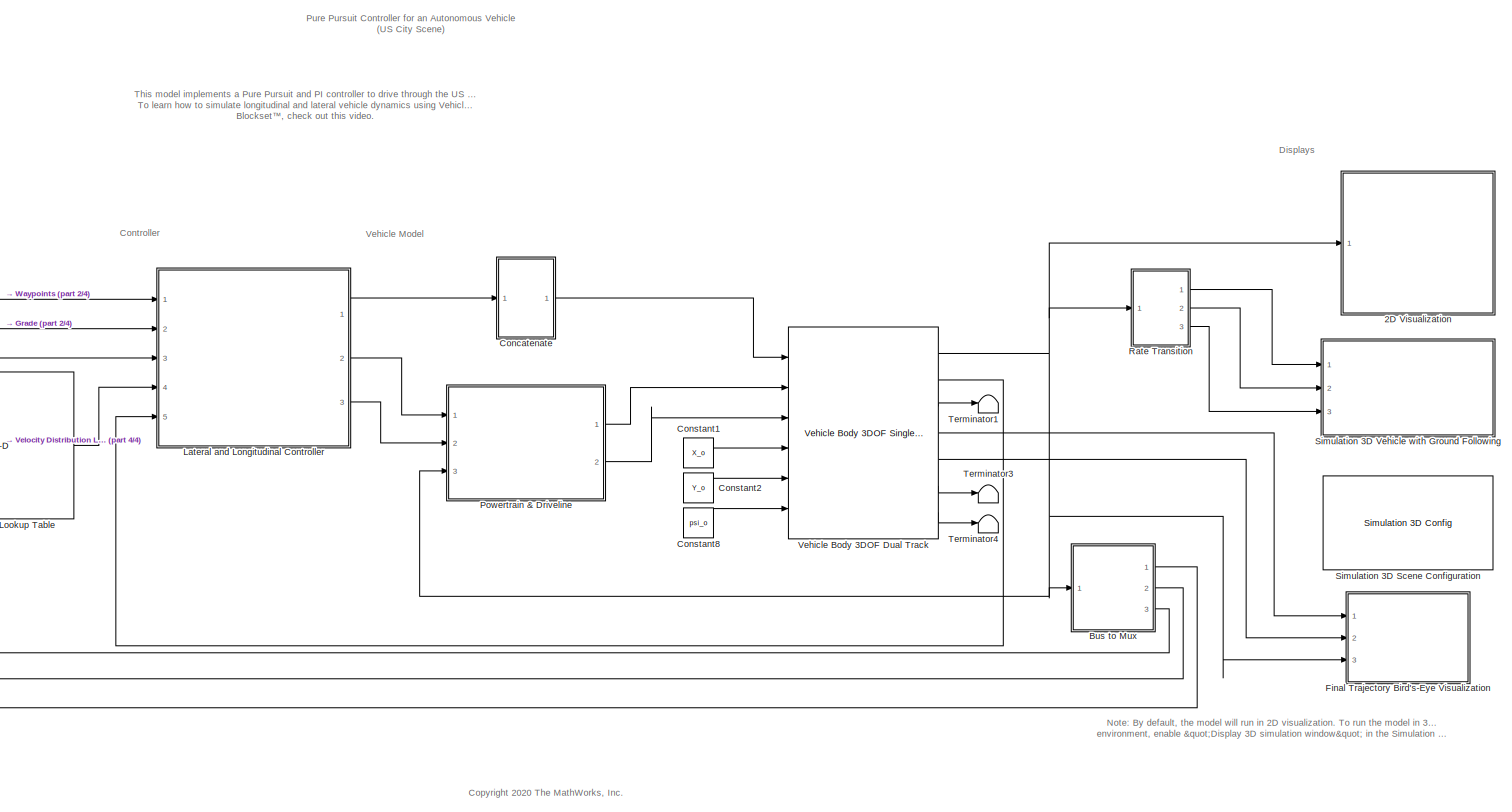
[diagram: root canvas - part 1/4, center side, full height]
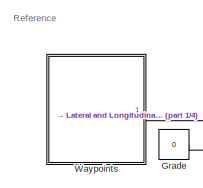
[diagram: root canvas - part 2/4, middle left region]
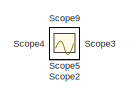
[diagram: root canvas - part 3/4, top right region]
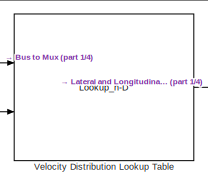
[diagram: root canvas - part 4/4, middle left region]
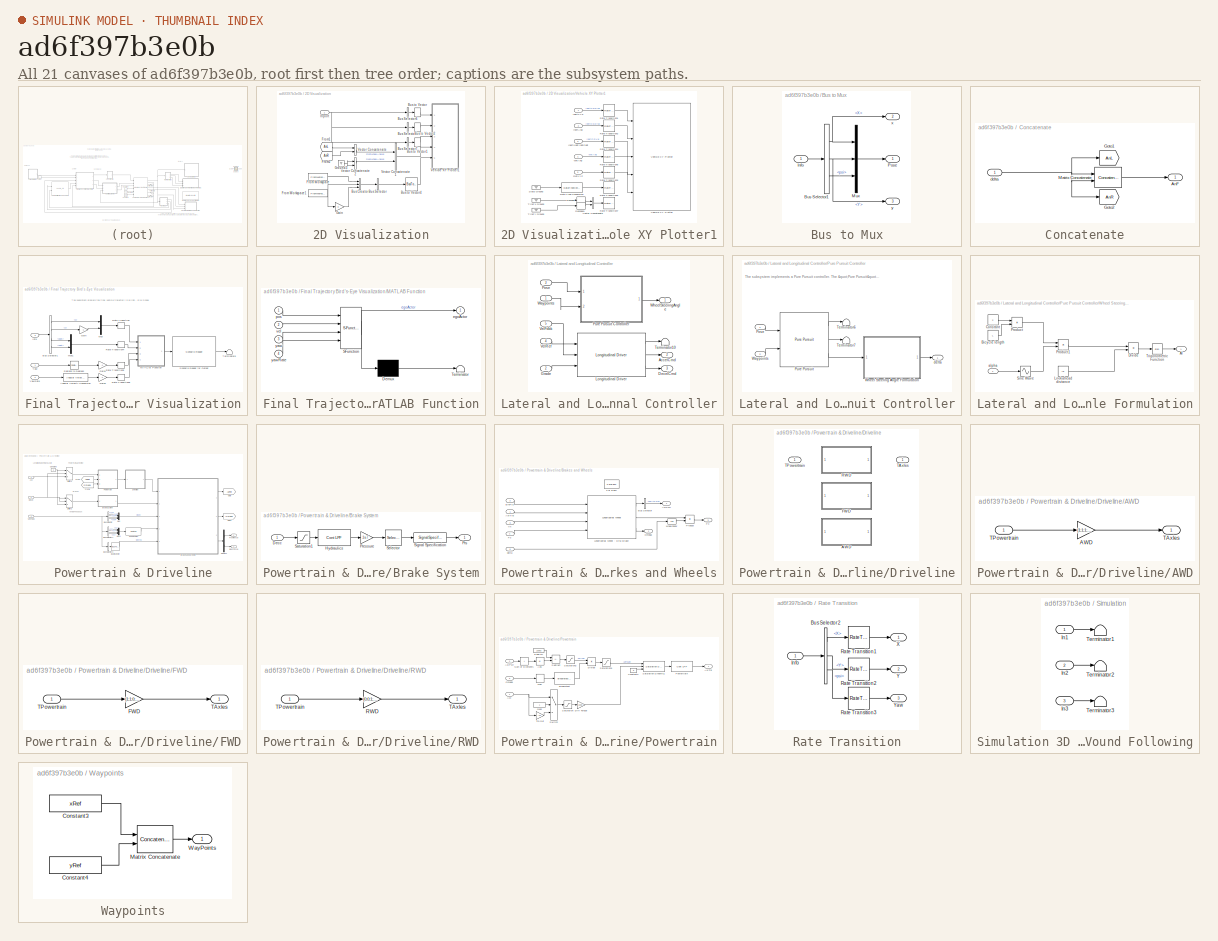
[diagram: thumbnail index - all 21 canvases of the model, root first then tree order]
MODEL slx_ad6f397b3e0b
KIND model
CONFIG AbsTol = auto
CONFIG EnableMultiTasking = off
CONFIG FixedStep = auto
CONFIG MaxStep = auto
CONFIG MinStep = auto
CONFIG PreLoadFcn = setUpPurePursuitUSCity
CONFIG RelTol = 1e-3
CONFIG SampleTimeConstraint = Unconstrained
CONFIG Solver = VariableStepAuto
CONFIG SolverName = VariableStepAuto
CONFIG StartTime = 0.0
CONFIG StopTime = Ts
WORKSPACE source: MAT-file member
WORKSPACE firstWarning = 0
BLOCK [SubSystem] 2D Visualization
  Ports = [1]
  RequestExecContextInheritance = off
BLOCK [BusCreator] 2D Visualization/Bus Creator
  DisplayOption = bar
  InheritFromInputs = on
  Inputs = 3
  Ports = [3, 1]
BLOCK [BusSelector] 2D Visualization/Bus Selector
  OutputAsBus = on
  OutputSignals = signal1,signal2,signal3
  Ports = [1, 1]
BLOCK [BusSelector] 2D Visualization/Bus Selector1
  OutputAsBus = on
  OutputSignals = InertFrm.Cg.Ang.phi,InertFrm.Cg.Ang.theta,InertFrm.Cg.Ang.psi
  Ports = [1, 1]
BLOCK [BusSelector] 2D Visualization/Bus Selector6
  OutputAsBus = on
  OutputSignals = InertFrm.Geom.Disp.X,InertFrm.Geom.Disp.Y,InertFrm.Geom.Disp.Z
  Ports = [1, 1]
BLOCK [BusSelector] 2D Visualization/Bus Selector7
  OutputAsBus = on
  OutputSignals = InertFrm.Geom.Vel.Xdot,InertFrm.Geom.Vel.Ydot,InertFrm.Geom.Vel.Zdot
  Ports = [1, 1]
BLOCK [BusToVector] 2D Visualization/Bus to Vector
BLOCK [BusToVector] 2D Visualization/Bus to Vector1
BLOCK [BusToVector] 2D Visualization/Bus to Vector2
BLOCK [BusToVector] 2D Visualization/Bus to Vector4
BLOCK [FromWorkspace] 2D Visualization/From Workspace
  VariableName = [tRef xRef]
BLOCK [FromWorkspace] 2D Visualization/From Workspace1
  VariableName = [tRef yRef]
BLOCK [From] 2D Visualization/From1
  GotoTag = AnL
  TagVisibility = global
BLOCK [From] 2D Visualization/From2
  GotoTag = AnR
  TagVisibility = global
BLOCK [Gain] 2D Visualization/Gain
  Gain = 0
BLOCK [Ground] 2D Visualization/Ground3
BLOCK [Inport] 2D Visualization/Inport
BLOCK [Concatenate] 2D Visualization/Vector Concatenate
  Ports = [2, 1]
BLOCK [Concatenate] 2D Visualization/Vector Concatenate1
  Ports = [2, 1]
BLOCK [Concatenate] 2D Visualization/Vector Concatenate2
  Ports = [2, 1]
BLOCK [SubSystem] 2D Visualization/Vehicle XY Plotter1
  Ports = [5]
  RequestExecContextInheritance = off
BLOCK [DataTypeConversion] 2D Visualization/Vehicle XY Plotter1/Data Type Conversion
  OutDataTypeStr = double
  RndMeth = Floor
  SaturateOnIntegerOverflow = off
BLOCK [Inport] 2D Visualization/Vehicle XY Plotter1/InertAng
  Port = 2
BLOCK [Inport] 2D Visualization/Vehicle XY Plotter1/InertXYZ
BLOCK [Inport] 2D Visualization/Vehicle XY Plotter1/InertXdotYdotZdot
  Port = 3
BLOCK [RateTransition] 2D Visualization/Vehicle XY Plotter1/Rate Transition1
  Deterministic = off
  OutPortSampleTime = pltDT
BLOCK [RateTransition] 2D Visualization/Vehicle XY Plotter1/Rate Transition2
  Deterministic = off
  OutPortSampleTime = pltDT
BLOCK [RateTransition] 2D Visualization/Vehicle XY Plotter1/Rate Transition3
  Deterministic = off
  OutPortSampleTime = pltDT
BLOCK [RateTransition] 2D Visualization/Vehicle XY Plotter1/Rate Transition4
  Deterministic = off
  OutPortSampleTime = pltDT
BLOCK [RateTransition] 2D Visualization/Vehicle XY Plotter1/Rate Transition5
  Deterministic = off
  OutPortSampleTime = pltDT
BLOCK [RateTransition] 2D Visualization/Vehicle XY Plotter1/Rate Transition6
  Deterministic = off
  OutPortSampleTime = pltDT
BLOCK [RateTransition] 2D Visualization/Vehicle XY Plotter1/Rate Transition7
  Deterministic = off
  OutPortSampleTime = pltDT
BLOCK [Inport] 2D Visualization/Vehicle XY Plotter1/RefXYZ
  Port = 5
BLOCK [Reshape] 2D Visualization/Vehicle XY Plotter1/Reshape
  OutputDimensionality = Row vector (2-D)
  Ports = [1, 1]
BLOCK [Reshape] 2D Visualization/Vehicle XY Plotter1/Reshape1
  OutputDimensionality = Row vector (2-D)
  Ports = [1, 1]
BLOCK [Ground] 2D Visualization/Vehicle XY Plotter1/Stats Ground
BLOCK [Ground] 2D Visualization/Vehicle XY Plotter1/TireFx Ground
BLOCK [Ground] 2D Visualization/Vehicle XY Plotter1/TireFy Ground
BLOCK [Concatenate] 2D Visualization/Vehicle XY Plotter1/Vector Concatenate
  Mode = Multidimensional array
  Ports = [2, 1]
BLOCK [Reference] 2D Visualization/Vehicle XY Plotter1/Vehicle XY Plotter  REF=vehdynlibviscommon/Vehicle XY Plotter
  Ports = [5]
  SourceBlock = vehdynlibviscommon/Vehicle XY Plotter
  SourceProductBaseCode = VE
  SourceType = Vehicle XY Plotter
BLOCK [Inport] 2D Visualization/Vehicle XY Plotter1/WhlAng
  Port = 4
BLOCK [SubSystem] Bus to Mux
  Ports = [1, 3]
  RequestExecContextInheritance = off
BLOCK [BusSelector] Bus to Mux/Bus Selector1
  OutputSignals = InertFrm.Cg.Disp.X,InertFrm.Cg.Disp.Y,InertFrm.Cg.Ang.psi
  Ports = [1, 3]
BLOCK [Inport] Bus to Mux/Info
BLOCK [Mux] Bus to Mux/Mux
  DisplayOption = bar
  Inputs = 3
  Ports = [3, 1]
BLOCK [Outport] Bus to Mux/Pose
BLOCK [Outport] Bus to Mux/x
  Port = 2
BLOCK [Outport] Bus to Mux/y
  Port = 3
BLOCK [SubSystem] Concatenate
  Ports = [1, 1]
  RequestExecContextInheritance = off
BLOCK [Outport] Concatenate/AnF
  VectorParamsAs1DForOutWhenUnconnected = off
BLOCK [Goto] Concatenate/Goto1
  GotoTag = AnL
  TagVisibility = global
BLOCK [Goto] Concatenate/Goto2
  GotoTag = AnR
  TagVisibility = global
BLOCK [Concatenate] Concatenate/Matrix Concatenate
  Ports = [2, 1]
BLOCK [Inport] Concatenate/delta
BLOCK [Constant] Constant1
  Value = X_o
BLOCK [Constant] Constant2
  Value = Y_o
BLOCK [Constant] Constant8
  Value = psi_o
BLOCK [SubSystem] Final Trajectory Bird's-Eye Visualization
  Ports = [3]
  RequestExecContextInheritance = off
BLOCK [Reference] Final Trajectory Bird's-Eye Visualization/Angular Velocity Conversion  REF=aerolibconvert2/Angular Velocity
Conversion
  Ports = [1, 1]
  SourceBlock = aerolibconvert2/Angular Velocity\nConversion
  SourceProductBaseCode = AE
  SourceType = Angular Velocity Conversion
BLOCK [BusSelector] Final Trajectory Bird's-Eye Visualization/Bus Selector1
  OutputSignals = InertFrm.Cg.Disp.X,InertFrm.Cg.Disp.Y,InertFrm.Cg.Vel.Xdot,InertFrm.Cg.Vel.Ydot
  Ports = [1, 4]
BLOCK [Gain] Final Trajectory Bird's-Eye Visualization/Gain
  Gain = -1
BLOCK [Gain] Final Trajectory Bird's-Eye Visualization/Gain1
  Gain = -1
BLOCK [Gain] Final Trajectory Bird's-Eye Visualization/Gain2
  Gain = -1
BLOCK [Inport] Final Trajectory Bird's-Eye Visualization/Info
  Port = 3
BLOCK [SubSystem] Final Trajectory Bird's-Eye Visualization/MATLAB Function
  ErrorFcn = Stateflow.Translate.translate
  PermitHierarchicalResolution = ExplicitOnly
  Ports = [4, 1]
  RequestExecContextInheritance = off
  SFBlockType = MATLAB Function
  TreatAsAtomicUnit = on
BLOCK [Demux] Final Trajectory Bird's-Eye Visualization/MATLAB Function/ Demux 
  Outputs = 1
  Ports = [1, 1]
BLOCK [S-Function] Final Trajectory Bird's-Eye Visualization/MATLAB Function/ SFunction 
  EnableBusSupport = on
  FunctionName = sf_sfun
  PortCounts = [4 2]
  Ports = [4, 2]
  SFcnIsStateOwnerBlock = off
  SFunctionDeploymentMode = off
  Tag = Stateflow S-Function purePursuitUSCity_2019a 2
BLOCK [Terminator] Final Trajectory Bird's-Eye Visualization/MATLAB Function/ Terminator 
BLOCK [Outport] Final Trajectory Bird's-Eye Visualization/MATLAB Function/egoActor
BLOCK [Inport] Final Trajectory Bird's-Eye Visualization/MATLAB Function/pos
BLOCK [Inport] Final Trajectory Bird's-Eye Visualization/MATLAB Function/vel
  Port = 2
BLOCK [Inport] Final Trajectory Bird's-Eye Visualization/MATLAB Function/yaw
  Port = 3
BLOCK [Inport] Final Trajectory Bird's-Eye Visualization/MATLAB Function/yawRate
  Port = 4
BLOCK [Mux] Final Trajectory Bird's-Eye Visualization/Mux
  DisplayOption = bar
  Inputs = 2
  Ports = [2, 1]
BLOCK [Mux] Final Trajectory Bird's-Eye Visualization/Mux1
  DisplayOption = bar
  Inputs = 2
  Ports = [2, 1]
BLOCK [Reference] Final Trajectory Bird's-Eye Visualization/Radians to Degrees  REF=simulink_extras/Transformations/Radians
to Degrees
  Ports = [1, 1]
  SourceBlock = simulink_extras/Transformations/Radians\nto Degrees
  SourceProductBaseCode = SL
  SourceType = RadiansToDegrees
BLOCK [RateTransition] Final Trajectory Bird's-Eye Visualization/Rate Transition
BLOCK [RateTransition] Final Trajectory Bird's-Eye Visualization/Rate Transition4
BLOCK [RateTransition] Final Trajectory Bird's-Eye Visualization/Rate Transition5
BLOCK [RateTransition] Final Trajectory Bird's-Eye Visualization/Rate Transition6
BLOCK [Reference] Final Trajectory Bird's-Eye Visualization/Scenario Reader for Output   REF=drivingscenarioandsensors/Scenario Reader
  Ports = [1, 1]
  SourceBlock = drivingscenarioandsensors/Scenario Reader
  SourceProductBaseCode = DR
  SourceType = driving.scenario.internal.ScenarioReader
BLOCK [Terminator] Final Trajectory Bird's-Eye Visualization/Terminator6
BLOCK [Inport] Final Trajectory Bird's-Eye Visualization/Yaw
BLOCK [Inport] Final Trajectory Bird's-Eye Visualization/YawRate
  Port = 2
BLOCK [Constant] Grade
  Value = 0
BLOCK [SubSystem] Lateral and Longitudinal Controller
  Ports = [5, 3]
  RequestExecContextInheritance = off
BLOCK [Outport] Lateral and Longitudinal Controller/AccelCmd
  Port = 2
BLOCK [Outport] Lateral and Longitudinal Controller/DecelCmd
  Port = 3
BLOCK [Inport] Lateral and Longitudinal Controller/Grade
  Port = 2
BLOCK [Reference] Lateral and Longitudinal Controller/Longitudinal Driver  REF=autolibshared/Longitudinal Driver
  Ports = [3, 3]
  SourceBlock = autolibshared/Longitudinal Driver
  SourceProductBaseCode = PW,MT,UV,VE,VP
  SourceType = Longitudinal Driver
BLOCK [Inport] Lateral and Longitudinal Controller/Pose
  Port = 3
BLOCK [SubSystem] Lateral and Longitudinal Controller/Pure Pursuit Controller
  Ports = [2, 1]
  RequestExecContextInheritance = off
BLOCK [Inport] Lateral and Longitudinal Controller/Pure Pursuit Controller/Pose
BLOCK [Reference] Lateral and Longitudinal Controller/Pure Pursuit Controller/Pure Pursuit  REF=robotalgslib/Pure Pursuit
  Ports = [2, 3]
  SourceBlock = robotalgslib/Pure Pursuit
  SourceProductBaseCode = NV,RO
  SourceType = nav.slalgs.internal.PurePursuit
BLOCK [Terminator] Lateral and Longitudinal Controller/Pure Pursuit Controller/Terminator6
BLOCK [Terminator] Lateral and Longitudinal Controller/Pure Pursuit Controller/Terminator7
BLOCK [Inport] Lateral and Longitudinal Controller/Pure Pursuit Controller/Waypoints
  Port = 2
BLOCK [SubSystem] Lateral and Longitudinal Controller/Pure Pursuit Controller/Wheel Steering Angle Formulation
  Ports = [1, 1]
  RequestExecContextInheritance = off
BLOCK [Outport] Lateral and Longitudinal Controller/Pure Pursuit Controller/Wheel Steering Angle Formulation/Al
BLOCK [Constant] Lateral and Longitudinal Controller/Pure Pursuit Controller/Wheel Steering Angle Formulation/Bicycle length
  Value = L
BLOCK [Constant] Lateral and Longitudinal Controller/Pure Pursuit Controller/Wheel Steering Angle Formulation/Constant
  Value = 2
BLOCK [Product] Lateral and Longitudinal Controller/Pure Pursuit Controller/Wheel Steering Angle Formulation/Divide
  Inputs = */
  Ports = [2, 1]
BLOCK [Constant] Lateral and Longitudinal Controller/Pure Pursuit Controller/Wheel Steering Angle Formulation/Lookahead distance
  Value = ld
BLOCK [Product] Lateral and Longitudinal Controller/Pure Pursuit Controller/Wheel Steering Angle Formulation/Product
  Ports = [2, 1]
BLOCK [Product] Lateral and Longitudinal Controller/Pure Pursuit Controller/Wheel Steering Angle Formulation/Product1
  Ports = [2, 1]
BLOCK [Sin] Lateral and Longitudinal Controller/Pure Pursuit Controller/Wheel Steering Angle Formulation/Sine Wave
  Ports = [1, 1]
  SampleTime = 0
  TimeSource = Use external signal
BLOCK [Trigonometry] Lateral and Longitudinal Controller/Pure Pursuit Controller/Wheel Steering Angle Formulation/Trigonometric Function
  Operator = atan
  Ports = [1, 1]
BLOCK [Inport] Lateral and Longitudinal Controller/Pure Pursuit Controller/Wheel Steering Angle Formulation/alpha
BLOCK [Outport] Lateral and Longitudinal Controller/Pure Pursuit Controller/delta
BLOCK [Terminator] Lateral and Longitudinal Controller/Terminator10
BLOCK [Inport] Lateral and Longitudinal Controller/VelFdbk
  Port = 5
BLOCK [Inport] Lateral and Longitudinal Controller/VelRef
  Port = 4
BLOCK [Inport] Lateral and Longitudinal Controller/Waypoints
BLOCK [Outport] Lateral and Longitudinal Controller/WheelSteeringAngle
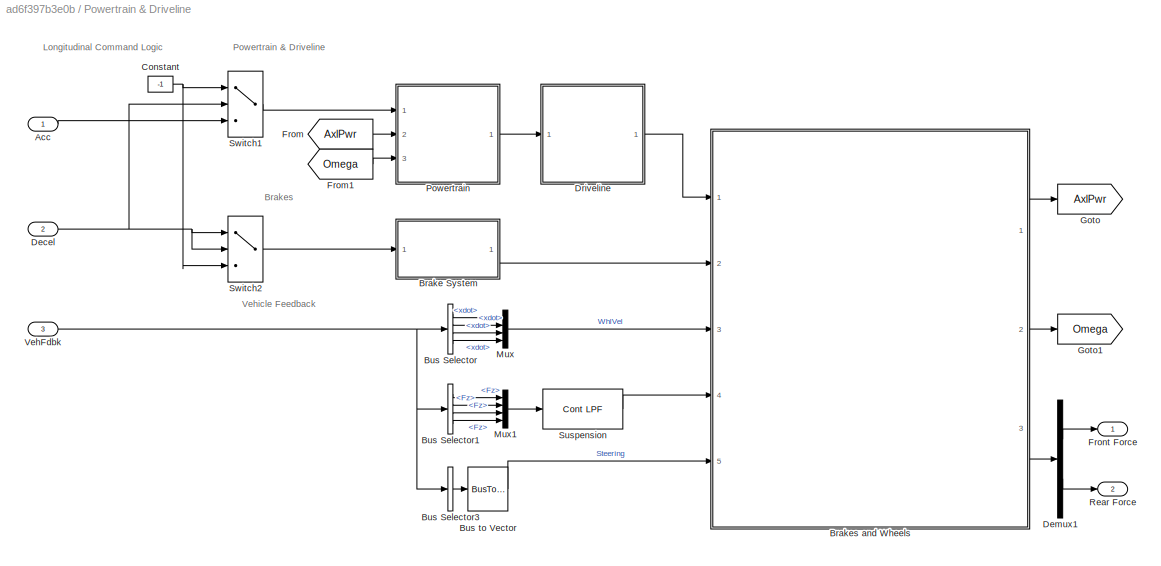
BLOCK [SubSystem] Powertrain & Driveline
  Ports = [3, 2]
  RequestExecContextInheritance = off
BLOCK [Inport] Powertrain & Driveline/Acc
BLOCK [SubSystem] Powertrain & Driveline/Brake System
  Ports = [1, 1]
  RequestExecContextInheritance = off
BLOCK [Inport] Powertrain & Driveline/Brake System/Decc
BLOCK [Reference] Powertrain & Driveline/Brake System/Hydraulics  REF=autolibutils/Cont LPF
  Ports = [1, 1]
  SourceBlock = autolibutils/Cont LPF
  SourceProductBaseCode = PW,MT,UV,VE,VP
BLOCK [Gain] Powertrain & Driveline/Brake System/Pressure
  Gain = 2e7
BLOCK [Outport] Powertrain & Driveline/Brake System/Prs
  VectorParamsAs1DForOutWhenUnconnected = off
BLOCK [Saturate] Powertrain & Driveline/Brake System/Saturation1
  LowerLimit = 0
  UpperLimit = inf
  ZeroCross = off
BLOCK [Selector] Powertrain & Driveline/Brake System/Selector
  IndexOptions = Index vector (dialog)
  Indices = [1 1 1 1]
  InputPortWidth = 1
  OutputSizes = 1
  Ports = [1, 1]
BLOCK [SignalSpecification] Powertrain & Driveline/Brake System/Signal Specification
  Unit = Pa
BLOCK [SubSystem] Powertrain & Driveline/Brakes and Wheels
  Ports = [5, 3]
  RequestExecContextInheritance = off
  TreatAsAtomicUnit = on
BLOCK [Outport] Powertrain & Driveline/Brakes and Wheels/AxlPwr
  ConcatenationDimension = 1
  VectorParamsAs1DForOutWhenUnconnected = off
BLOCK [Inport] Powertrain & Driveline/Brakes and Wheels/AxlTrq
  Partition = on
  PartitionDimension = 1
  PartitionOffset = 0
  PartitionWidth = 1
BLOCK [Inport] Powertrain & Driveline/Brakes and Wheels/BrkPrs
  Partition = on
  PartitionDimension = 1
  PartitionOffset = 0
  PartitionWidth = 1
  Port = 2
BLOCK [BusSelector] Powertrain & Driveline/Brakes and Wheels/Bus Selector
  OutputSignals = PwrInfo.PwrTrnsfrd.PwrAxlTrq
  Ports = [1, 1]
BLOCK [ForEach] Powertrain & Driveline/Brakes and Wheels/For Each
  DisableCoverage = on
  Ports = []
BLOCK [Outport] Powertrain & Driveline/Brakes and Wheels/Fx
  ConcatenationDimension = 1
  Port = 3
  VectorParamsAs1DForOutWhenUnconnected = off
BLOCK [Inport] Powertrain & Driveline/Brakes and Wheels/Fz
  Partition = on
  PartitionDimension = 1
  PartitionOffset = 0
  PartitionWidth = 1
  Port = 4
BLOCK [Reference] Powertrain & Driveline/Brakes and Wheels/Longitudinal Wheel - Disc Brake  REF=autolibshared/Longitudinal Wheel
  Ports = [4, 3]
  SourceBlock = autolibshared/Longitudinal Wheel
  SourceProductBaseCode = PW,MT,UV,VE,VP
  SourceType = Longitudinal Wheel
BLOCK [Outport] Powertrain & Driveline/Brakes and Wheels/Omega
  ConcatenationDimension = 1
  Port = 2
  VectorParamsAs1DForOutWhenUnconnected = off
BLOCK [Product] Powertrain & Driveline/Brakes and Wheels/Product
  Ports = [2, 1]
BLOCK [Inport] Powertrain & Driveline/Brakes and Wheels/Vx
  Partition = on
  PartitionDimension = 1
  PartitionOffset = 0
  PartitionWidth = 1
  Port = 3
BLOCK [Inport] Powertrain & Driveline/Brakes and Wheels/delta
  Partition = on
  PartitionDimension = 1
  PartitionOffset = 0
  PartitionWidth = 1
  Port = 5
BLOCK [Trigonometry] Powertrain & Driveline/Brakes and Wheels/wheel2body
  Operator = cos
  Ports = [1, 1]
BLOCK [BusSelector] Powertrain & Driveline/Bus Selector
  OutputSignals = BdyFrm.FrntAxl.Lft.Vel.xdot,BdyFrm.FrntAxl.Rght.Vel.xdot,BdyFrm.RearAxl.Lft.Vel.xdot,BdyFrm.RearAxl.Rght.Vel.xdot
  Ports = [1, 4]
BLOCK [BusSelector] Powertrain & Driveline/Bus Selector1
  OutputSignals = BdyFrm.Forces.FrntAxl.Lft.Fz,BdyFrm.Forces.FrntAxl.Rght.Fz,BdyFrm.Forces.RearAxl.Lft.Fz,BdyFrm.Forces.RearAxl.Rght.Fz
  Ports = [1, 4]
BLOCK [BusSelector] Powertrain & Driveline/Bus Selector3
  OutputAsBus = on
  OutputSignals = BdyFrm.FrntAxl.Steer.WhlAngFL,BdyFrm.FrntAxl.Steer.WhlAngFR,BdyFrm.RearAxl.Steer.WhlAngRL,BdyFrm.RearAxl.Steer.WhlAngRR
  Ports = [1, 1]
BLOCK [BusToVector] Powertrain & Driveline/Bus to Vector
BLOCK [Constant] Powertrain & Driveline/Constant
  Value = -1
BLOCK [Inport] Powertrain & Driveline/Decel
  Port = 2
BLOCK [Demux] Powertrain & Driveline/Demux1
  Outputs = [2 2]
  Ports = [1, 2]
BLOCK [SubSystem] Powertrain & Driveline/Driveline
  LabelModeActiveChoice = 0
  Ports = [1, 1]
  RequestExecContextInheritance = off
  Variant = on
  VariantControl = Variant1
  VariantControlMode = label
BLOCK [SubSystem] Powertrain & Driveline/Driveline/AWD
  Ports = [1, 1]
  RequestExecContextInheritance = off
  VariantControl = 2
BLOCK [Gain] Powertrain & Driveline/Driveline/AWD/AWD
  Gain = [1;1;1;1]./2
BLOCK [Outport] Powertrain & Driveline/Driveline/AWD/TAxles
  VectorParamsAs1DForOutWhenUnconnected = off
BLOCK [Inport] Powertrain & Driveline/Driveline/AWD/TPowertrain
BLOCK [SubSystem] Powertrain & Driveline/Driveline/FWD
  Ports = [1, 1]
  RequestExecContextInheritance = off
  VariantControl = 1
BLOCK [Gain] Powertrain & Driveline/Driveline/FWD/FWD
  Gain = [1;1;0;0]
BLOCK [Outport] Powertrain & Driveline/Driveline/FWD/TAxles
  VectorParamsAs1DForOutWhenUnconnected = off
BLOCK [Inport] Powertrain & Driveline/Driveline/FWD/TPowertrain
BLOCK [SubSystem] Powertrain & Driveline/Driveline/RWD
  Ports = [1, 1]
  RequestExecContextInheritance = off
  VariantControl = 0
BLOCK [Gain] Powertrain & Driveline/Driveline/RWD/RWD
  Gain = [0;0;1;1]
BLOCK [Outport] Powertrain & Driveline/Driveline/RWD/TAxles
  VectorParamsAs1DForOutWhenUnconnected = off
BLOCK [Inport] Powertrain & Driveline/Driveline/RWD/TPowertrain
BLOCK [Outport] Powertrain & Driveline/Driveline/TAxles
  VectorParamsAs1DForOutWhenUnconnected = off
BLOCK [Inport] Powertrain & Driveline/Driveline/TPowertrain
BLOCK [From] Powertrain & Driveline/From
  GotoTag = AxlPwr
BLOCK [From] Powertrain & Driveline/From1
  GotoTag = Omega
BLOCK [Outport] Powertrain & Driveline/Front Force
  VectorParamsAs1DForOutWhenUnconnected = off
BLOCK [Goto] Powertrain & Driveline/Goto
  GotoTag = AxlPwr
BLOCK [Goto] Powertrain & Driveline/Goto1
  GotoTag = Omega
BLOCK [Mux] Powertrain & Driveline/Mux
  DisplayOption = bar
  Ports = [4, 1]
BLOCK [Mux] Powertrain & Driveline/Mux1
  DisplayOption = bar
  Ports = [4, 1]
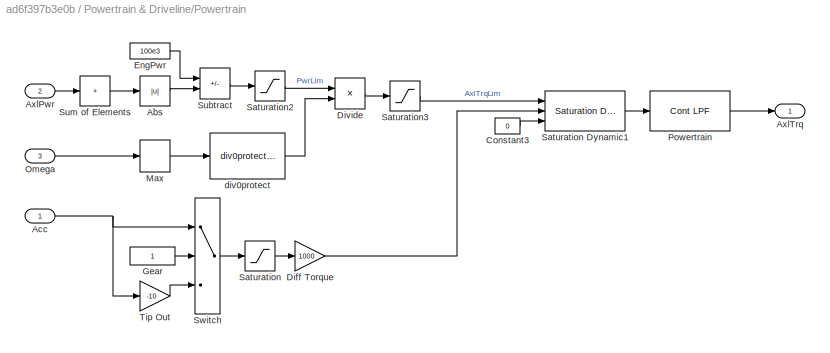
BLOCK [SubSystem] Powertrain & Driveline/Powertrain
  Ports = [3, 1]
  RequestExecContextInheritance = off
BLOCK [Abs] Powertrain & Driveline/Powertrain/Abs
  SaturateOnIntegerOverflow = off
  ZeroCross = off
BLOCK [Inport] Powertrain & Driveline/Powertrain/Acc
BLOCK [Inport] Powertrain & Driveline/Powertrain/AxlPwr
  Port = 2
BLOCK [Outport] Powertrain & Driveline/Powertrain/AxlTrq
  VectorParamsAs1DForOutWhenUnconnected = off
BLOCK [Constant] Powertrain & Driveline/Powertrain/Constant3
  Value = 0
BLOCK [Gain] Powertrain & Driveline/Powertrain/Diff Torque
  Gain = 1000
BLOCK [Product] Powertrain & Driveline/Powertrain/Divide
  Inputs = */
  Ports = [2, 1]
BLOCK [Constant] Powertrain & Driveline/Powertrain/EngPwr
  Value = 100e3
BLOCK [Constant] Powertrain & Driveline/Powertrain/Gear
  SampleTime = -1
BLOCK [MinMax] Powertrain & Driveline/Powertrain/Max
  Function = max
  Ports = [1, 1]
  ZeroCross = off
BLOCK [Inport] Powertrain & Driveline/Powertrain/Omega
  Port = 3
BLOCK [Reference] Powertrain & Driveline/Powertrain/Powertrain  REF=autolibutils/Cont LPF
  Ports = [1, 1]
  SourceBlock = autolibutils/Cont LPF
  SourceProductBaseCode = PW,MT,UV,VE,VP
BLOCK [Saturate] Powertrain & Driveline/Powertrain/Saturation
  LowerLimit = 0
  UpperLimit = inf
  ZeroCross = off
BLOCK [Reference] Powertrain & Driveline/Powertrain/Saturation Dynamic1  REF=simulink/Discontinuities/Saturation
Dynamic
  Ports = [3, 1]
  SourceBlock = simulink/Discontinuities/Saturation\nDynamic
  SourceProductBaseCode = SL
  SourceType = Saturation Dynamic
BLOCK [Saturate] Powertrain & Driveline/Powertrain/Saturation2
  LowerLimit = 100
  UpperLimit = inf
  ZeroCross = off
BLOCK [Saturate] Powertrain & Driveline/Powertrain/Saturation3
  LowerLimit = 0
  UpperLimit = 1000
  ZeroCross = off
BLOCK [Sum] Powertrain & Driveline/Powertrain/Subtract
  IconShape = rectangular
  Inputs = +-
  Ports = [2, 1]
BLOCK [Sum] Powertrain & Driveline/Powertrain/Sum of Elements
  IconShape = rectangular
  Inputs = +
  Ports = [1, 1]
BLOCK [Switch] Powertrain & Driveline/Powertrain/Switch
  InputSameDT = off
  SaturateOnIntegerOverflow = off
  ZeroCross = off
BLOCK [Gain] Powertrain & Driveline/Powertrain/Tip Out
  Gain = -10
BLOCK [Reference] Powertrain & Driveline/Powertrain/div0protect  REF=autolibutils/div0protect - poly
  Ports = [1, 1]
  SourceBlock = autolibutils/div0protect - poly
  SourceProductBaseCode = PW,MT,UV,VE,VP
BLOCK [Outport] Powertrain & Driveline/Rear Force
  Port = 2
  VectorParamsAs1DForOutWhenUnconnected = off
BLOCK [Reference] Powertrain & Driveline/Suspension  REF=autolibutils/Cont LPF
  Ports = [1, 1]
  SourceBlock = autolibutils/Cont LPF
  SourceProductBaseCode = PW,MT,UV,VE,VP
BLOCK [Switch] Powertrain & Driveline/Switch1
  Criteria = u2 > Threshold
  InputSameDT = off
  SaturateOnIntegerOverflow = off
BLOCK [Switch] Powertrain & Driveline/Switch2
  Criteria = u2 > Threshold
  InputSameDT = off
  SaturateOnIntegerOverflow = off
BLOCK [Inport] Powertrain & Driveline/VehFdbk
  Port = 3
BLOCK [SubSystem] Rate Transition
  Ports = [1, 3]
  RequestExecContextInheritance = off
BLOCK [BusSelector] Rate Transition/Bus Selector2
  OutputSignals = InertFrm.Geom.Disp.X,InertFrm.Geom.Disp.Y,InertFrm.Cg.Ang.psi
  Ports = [1, 3]
BLOCK [Inport] Rate Transition/Info
BLOCK [RateTransition] Rate Transition/Rate Transition1
  InitialCondition = X_o
  OutPortSampleTime = 0.01
BLOCK [RateTransition] Rate Transition/Rate Transition2
  InitialCondition = Y_o
  OutPortSampleTime = 0.01
BLOCK [RateTransition] Rate Transition/Rate Transition3
  OutPortSampleTime = 0.01
BLOCK [Outport] Rate Transition/X
BLOCK [Outport] Rate Transition/Y
  Port = 2
BLOCK [Outport] Rate Transition/Yaw
  Port = 3
BLOCK [Scope] Scope
  Floating = off
  IOType = viewer
  NumInputPorts = 1
  Ports = []
  ScopeSpecificationString = Simulink.scopes.TimeScopeBlockCfg('CurrentConfiguration', extmgr.ConfigurationSet(extmgr.Configuration('Core','General UI',true),extmgr.Configuration('Core','Source UI',true),extmgr.Configuration('Sources','WiredSimulink',true),extmgr.Configuration('Visuals','Time Domain',true,'SerializedDisplays',{struct('MinYLimReal','-0.82942','MaxYLimReal','5.64771','YLabelReal','','MinYLimMag','0.00000','MaxY...<+1345ch>
BLOCK [Scope] Scope1
  Floating = off
  IOType = viewer
  NumInputPorts = 1
  Ports = []
  ScopeSpecificationString = Simulink.scopes.TimeScopeBlockCfg('CurrentConfiguration', extmgr.ConfigurationSet(extmgr.Configuration('Core','General UI',true),extmgr.Configuration('Core','Source UI',true),extmgr.Configuration('Sources','WiredSimulink',true,'DataLoggingVariableName','ScopeData1'),extmgr.Configuration('Visuals','Time Domain',true,'SerializedDisplays',{struct('MinYLimReal','-0.24179','MaxYLimReal','0.3591','YLabe...<+1384ch>
BLOCK [Scope] Scope2
  Floating = off
  IOType = viewer
  NumInputPorts = 1
  Ports = []
  ScopeSpecificationString = Simulink.scopes.TimeScopeBlockCfg('CurrentConfiguration', extmgr.ConfigurationSet(extmgr.Configuration('Core','General UI',true),extmgr.Configuration('Core','Source UI',true),extmgr.Configuration('Sources','WiredSimulink',true,'DataLoggingVariableName','ScopeData2'),extmgr.Configuration('Visuals','Time Domain',true,'SerializedDisplays',{struct('MinYLimReal','-1.49318','MaxYLimReal','13.43861','YLa...<+1418ch>
BLOCK [Scope] Scope3
  Floating = off
  IOType = viewer
  NumInputPorts = 1
  Ports = []
  ScopeSpecificationString = Simulink.scopes.TimeScopeBlockCfg('CurrentConfiguration', extmgr.ConfigurationSet(extmgr.Configuration('Core','General UI',true),extmgr.Configuration('Core','Source UI',true),extmgr.Configuration('Sources','WiredSimulink',true,'DataLoggingVariableName','ScopeData1'),extmgr.Configuration('Visuals','Time Domain',true,'SerializedDisplays',{struct('MinYLimReal','-0.71654','MaxYLimReal','0.7388','YLabe...<+1465ch>
BLOCK [Scope] Scope4
  Floating = off
  IOType = viewer
  NumInputPorts = 1
  Ports = []
  ScopeSpecificationString = Simulink.scopes.TimeScopeBlockCfg('CurrentConfiguration', extmgr.ConfigurationSet(extmgr.Configuration('Core','General UI',true),extmgr.Configuration('Core','Source UI',true),extmgr.Configuration('Sources','WiredSimulink',true,'DataLoggingVariableName','ScopeData1'),extmgr.Configuration('Visuals','Time Domain',true,'SerializedDisplays',{struct('MinYLimReal','-0.125','MaxYLimReal','1.125','YLabelRe...<+1388ch>
BLOCK [Scope] Scope5
  Floating = off
  IOType = viewer
  NumInputPorts = 1
  Ports = []
  ScopeSpecificationString = Simulink.scopes.TimeScopeBlockCfg('CurrentConfiguration', extmgr.ConfigurationSet(extmgr.Configuration('Core','General UI',true),extmgr.Configuration('Core','Source UI',true),extmgr.Configuration('Sources','WiredSimulink',true,'DataLoggingVariableName','ScopeData2'),extmgr.Configuration('Visuals','Time Domain',true,'SerializedDisplays',{struct('MinYLimReal','-1.00000','MaxYLimReal','1.00000','YLab...<+1400ch>
BLOCK [Scope] Scope9
  Floating = off
  IOType = viewer
  NumInputPorts = 1
  Ports = []
  ScopeSpecificationString = Simulink.scopes.TimeScopeBlockCfg('CurrentConfiguration', extmgr.ConfigurationSet(extmgr.Configuration('Core','General UI',true),extmgr.Configuration('Core','Source UI',true),extmgr.Configuration('Sources','WiredSimulink',true,'DataLoggingVariableName','ScopeData1'),extmgr.Configuration('Visuals','Time Domain',true,'SerializedDisplays',{struct('MinYLimReal','-3.68616','MaxYLimReal','1.13066','YLab...<+1449ch>
BLOCK [Reference] Simulation 3D Scene Configuration  REF=sim3dlib/Simulation 3D Config
  Ports = []
  Priority = 1
  SourceBlock = sim3dlib/Simulation 3D Config
  SourceProductBaseCode = DR,UV,VE
  SourceType = Simulation 3D Scene Configuration
BLOCK [SubSystem] Simulation 3D Vehicle with Ground Following
  Description = Replaced Block
  Ports = [3]
  RequestExecContextInheritance = off
BLOCK [Inport] Simulation 3D Vehicle with Ground Following/In1
BLOCK [Inport] Simulation 3D Vehicle with Ground Following/In2
  Port = 2
BLOCK [Inport] Simulation 3D Vehicle with Ground Following/In3
  Port = 3
BLOCK [Terminator] Simulation 3D Vehicle with Ground Following/Terminator1
BLOCK [Terminator] Simulation 3D Vehicle with Ground Following/Terminator2
BLOCK [Terminator] Simulation 3D Vehicle with Ground Following/Terminator3
BLOCK [Terminator] Terminator1
BLOCK [Terminator] Terminator3
BLOCK [Terminator] Terminator4
BLOCK [Reference] Vehicle Body 3DOF Dual Track  REF=autolibshared/Vehicle Body 3DOF Single Track
  Ports = [6, 7]
  SourceBlock = autolibshared/Vehicle Body 3DOF Single Track
  SourceProductBaseCode = PW,MT,UV,VE,VP
  SourceType = Vehicle Body 3DOF Lateral
BLOCK [Lookup_n-D] Velocity Distribution Lookup Table
  BreakpointsForDimension1 = xlt
  BreakpointsForDimension2 = ylt
  InternalRulePriority = Speed
  Ports = [2, 1]
  RndMeth = Simplest
  Table = vel
BLOCK [SubSystem] Waypoints
  Ports = [0, 1]
  RequestExecContextInheritance = off
BLOCK [Constant] Waypoints/Constant3
  SampleTime = 0.1
  Value = xRef
BLOCK [Constant] Waypoints/Constant4
  SampleTime = 0.1
  Value = yRef
BLOCK [Concatenate] Waypoints/Matrix Concatenate
  ConcatenateDimension = 2
  Mode = Multidimensional array
  Ports = [2, 1]
BLOCK [Outport] Waypoints/WayPoints
ANNOTATION (root): Pure Pursuit Controller for an Autonomous Vehicle (US City Scene)
ANNOTATION (root): <copyright redacted>
ANNOTATION (root): Note: By default, the model will run in 2D visualization. To run the model in 3D visualization environment, enable " D isplay 3D simulation window " in the Simulation 3D Scene Configuration block.
ANNOTATION (root): This model implements a Pure Pursuit and PI controller to drive through the US City scene. To learn how to simulate longitudinal and lateral vehicle dynamics using Vehicle Dynamics Blockset™, check out this video .
ANNOTATION (root): Controller
ANNOTATION (root): Displays
ANNOTATION (root): Reference
ANNOTATION (root): Vehicle Model
ANNOTATION Final Trajectory Bird's-Eye Visualization: The subsystem displays the final vehicle trajectory in Bird's - Eye Scope
ANNOTATION Lateral and Longitudinal Controller/Pure Pursuit Controller: The subsystem implements a Pure Pursuit controller. The "Pure Pursuit" block calculates the target direction and the "Wheel Steering Angle Formulation" block calculates the wheel steering angle.
ANNOTATION Powertrain & Driveline: Brakes
ANNOTATION Powertrain & Driveline: Longitudinal Command Logic
ANNOTATION Powertrain & Driveline: Powertrain & Driveline
ANNOTATION Powertrain & Driveline: Vehicle Feedback
LINE 2D Visualization/Bus Creator:1 -> 2D Visualization/Bus Selector:1
LINE 2D Visualization/Bus Selector1:1 -> 2D Visualization/Bus to Vector2:1
LINE 2D Visualization/Bus Selector6:1 -> 2D Visualization/Bus to Vector:1
LINE 2D Visualization/Bus Selector7:1 -> 2D Visualization/Bus to Vector1:1
LINE 2D Visualization/Bus Selector:1 -> 2D Visualization/Bus to Vector4:1
LINE 2D Visualization/Bus to Vector1:1 -> 2D Visualization/Vehicle XY Plotter1:3
LINE 2D Visualization/Bus to Vector2:1 -> 2D Visualization/Vehicle XY Plotter1:2
LINE 2D Visualization/Bus to Vector4:1 -> 2D Visualization/Vehicle XY Plotter1:5
LINE 2D Visualization/Bus to Vector:1 -> 2D Visualization/Vehicle XY Plotter1:1
NET 2D Visualization/From Workspace1:1 -> 2D Visualization/Bus Creator:2, 2D Visualization/Gain:1
LINE 2D Visualization/From Workspace:1 -> 2D Visualization/Bus Creator:1
LINE 2D Visualization/From1:1 -> 2D Visualization/Vector Concatenate:1
LINE 2D Visualization/From2:1 -> 2D Visualization/Vector Concatenate:2
LINE 2D Visualization/Gain:1 -> 2D Visualization/Bus Creator:3
NET 2D Visualization/Ground3:1 -> 2D Visualization/Vector Concatenate2:1, 2D Visualization/Vector Concatenate2:2
NET 2D Visualization/Inport:1 -> 2D Visualization/Bus Selector1:1, 2D Visualization/Bus Selector6:1, 2D Visualization/Bus Selector7:1
LINE 2D Visualization/Vector Concatenate1:1 -> 2D Visualization/Vehicle XY Plotter1:4
LINE 2D Visualization/Vector Concatenate2:1 -> 2D Visualization/Vector Concatenate1:2
LINE 2D Visualization/Vector Concatenate:1 -> 2D Visualization/Vector Concatenate1:1
LINE 2D Visualization/Vehicle XY Plotter1/Data Type Conversion:1 -> 2D Visualization/Vehicle XY Plotter1/Rate Transition6:1
LINE 2D Visualization/Vehicle XY Plotter1/InertAng:1 -> 2D Visualization/Vehicle XY Plotter1/Rate Transition2:1
LINE 2D Visualization/Vehicle XY Plotter1/InertXYZ:1 -> 2D Visualization/Vehicle XY Plotter1/Rate Transition1:1
LINE 2D Visualization/Vehicle XY Plotter1/InertXdotYdotZdot:1 -> 2D Visualization/Vehicle XY Plotter1/Rate Transition4:1
LINE 2D Visualization/Vehicle XY Plotter1/Rate Transition1:1 -> 2D Visualization/Vehicle XY Plotter1/Vehicle XY Plotter:1
LINE 2D Visualization/Vehicle XY Plotter1/Rate Transition2:1 -> 2D Visualization/Vehicle XY Plotter1/Vehicle XY Plotter:2
LINE 2D Visualization/Vehicle XY Plotter1/Rate Transition3:1 -> 2D Visualization/Vehicle XY Plotter1/Vehicle XY Plotter:5
LINE 2D Visualization/Vehicle XY Plotter1/Rate Transition4:1 -> 2D Visualization/Vehicle XY Plotter1/Vehicle XY Plotter:3
LINE 2D Visualization/Vehicle XY Plotter1/Rate Transition5:1 -> 2D Visualization/Vehicle XY Plotter1/Vehicle XY Plotter:4
LINE 2D Visualization/Vehicle XY Plotter1/RefXYZ:1 -> 2D Visualization/Vehicle XY Plotter1/Rate Transition3:1
LINE 2D Visualization/Vehicle XY Plotter1/Reshape1:1 -> 2D Visualization/Vehicle XY Plotter1/Vector Concatenate:2
LINE 2D Visualization/Vehicle XY Plotter1/Reshape:1 -> 2D Visualization/Vehicle XY Plotter1/Vector Concatenate:1
LINE 2D Visualization/Vehicle XY Plotter1/Stats Ground:1 -> 2D Visualization/Vehicle XY Plotter1/Data Type Conversion:1
LINE 2D Visualization/Vehicle XY Plotter1/TireFx Ground:1 -> 2D Visualization/Vehicle XY Plotter1/Reshape:1
LINE 2D Visualization/Vehicle XY Plotter1/TireFy Ground:1 -> 2D Visualization/Vehicle XY Plotter1/Reshape1:1
LINE 2D Visualization/Vehicle XY Plotter1/Vector Concatenate:1 -> 2D Visualization/Vehicle XY Plotter1/Rate Transition7:1
LINE 2D Visualization/Vehicle XY Plotter1/WhlAng:1 -> 2D Visualization/Vehicle XY Plotter1/Rate Transition5:1
NET Bus to Mux/Bus Selector1:1 -> Bus to Mux/Mux:1, Bus to Mux/x:1
NET Bus to Mux/Bus Selector1:2 -> Bus to Mux/Mux:2, Bus to Mux/y:1
LINE Bus to Mux/Bus Selector1:3 -> Bus to Mux/Mux:3
LINE Bus to Mux/Info:1 -> Bus to Mux/Bus Selector1:1
LINE Bus to Mux/Mux:1 -> Bus to Mux/Pose:1
LINE Bus to Mux:1 -> Lateral and Longitudinal Controller:3
LINE Bus to Mux:2 -> Velocity Distribution Lookup Table:1
LINE Bus to Mux:3 -> Velocity Distribution Lookup Table:2
LINE Concatenate/Matrix Concatenate:1 -> Concatenate/AnF:1
NET Concatenate/delta:1 -> Concatenate/Goto1:1, Concatenate/Goto2:1, Concatenate/Matrix Concatenate:1, Concatenate/Matrix Concatenate:2
LINE Concatenate:1 -> Vehicle Body 3DOF Dual Track:1
LINE Constant1:1 -> Vehicle Body 3DOF Dual Track:4
LINE Constant2:1 -> Vehicle Body 3DOF Dual Track:5
LINE Constant8:1 -> Vehicle Body 3DOF Dual Track:6
LINE Final Trajectory Bird's-Eye Visualization/Angular Velocity Conversion:1 -> Final Trajectory Bird's-Eye Visualization/Gain2:1
LINE Final Trajectory Bird's-Eye Visualization/Bus Selector1:1 -> Final Trajectory Bird's-Eye Visualization/Mux:1
LINE Final Trajectory Bird's-Eye Visualization/Bus Selector1:2 -> Final Trajectory Bird's-Eye Visualization/Gain:1
LINE Final Trajectory Bird's-Eye Visualization/Bus Selector1:3 -> Final Trajectory Bird's-Eye Visualization/Mux1:1
LINE Final Trajectory Bird's-Eye Visualization/Bus Selector1:4 -> Final Trajectory Bird's-Eye Visualization/Mux1:2
LINE Final Trajectory Bird's-Eye Visualization/Gain1:1 -> Final Trajectory Bird's-Eye Visualization/Rate Transition5:1
LINE Final Trajectory Bird's-Eye Visualization/Gain2:1 -> Final Trajectory Bird's-Eye Visualization/Rate Transition6:1
LINE Final Trajectory Bird's-Eye Visualization/Gain:1 -> Final Trajectory Bird's-Eye Visualization/Mux:2
LINE Final Trajectory Bird's-Eye Visualization/Info:1 -> Final Trajectory Bird's-Eye Visualization/Bus Selector1:1
LINE Final Trajectory Bird's-Eye Visualization/MATLAB Function:1 -> Final Trajectory Bird's-Eye Visualization/Scenario Reader for Output :1
LINE Final Trajectory Bird's-Eye Visualization/Mux1:1 -> Final Trajectory Bird's-Eye Visualization/Rate Transition4:1
LINE Final Trajectory Bird's-Eye Visualization/Mux:1 -> Final Trajectory Bird's-Eye Visualization/Rate Transition:1
LINE Final Trajectory Bird's-Eye Visualization/Radians to Degrees:1 -> Final Trajectory Bird's-Eye Visualization/Gain1:1
LINE Final Trajectory Bird's-Eye Visualization/Rate Transition4:1 -> Final Trajectory Bird's-Eye Visualization/MATLAB Function:2
LINE Final Trajectory Bird's-Eye Visualization/Rate Transition5:1 -> Final Trajectory Bird's-Eye Visualization/MATLAB Function:3
LINE Final Trajectory Bird's-Eye Visualization/Rate Transition6:1 -> Final Trajectory Bird's-Eye Visualization/MATLAB Function:4
LINE Final Trajectory Bird's-Eye Visualization/Rate Transition:1 -> Final Trajectory Bird's-Eye Visualization/MATLAB Function:1
LINE Final Trajectory Bird's-Eye Visualization/Scenario Reader for Output :1 -> Final Trajectory Bird's-Eye Visualization/Terminator6:1
LINE Final Trajectory Bird's-Eye Visualization/Yaw:1 -> Final Trajectory Bird's-Eye Visualization/Radians to Degrees:1
LINE Final Trajectory Bird's-Eye Visualization/YawRate:1 -> Final Trajectory Bird's-Eye Visualization/Angular Velocity Conversion:1
LINE Grade:1 -> Lateral and Longitudinal Controller:2
LINE Lateral and Longitudinal Controller/Grade:1 -> Lateral and Longitudinal Controller/Longitudinal Driver:3
LINE Lateral and Longitudinal Controller/Longitudinal Driver:1 -> Lateral and Longitudinal Controller/Terminator10:1
LINE Lateral and Longitudinal Controller/Longitudinal Driver:2 -> Lateral and Longitudinal Controller/AccelCmd:1
LINE Lateral and Longitudinal Controller/Longitudinal Driver:3 -> Lateral and Longitudinal Controller/DecelCmd:1
LINE Lateral and Longitudinal Controller/Pose:1 -> Lateral and Longitudinal Controller/Pure Pursuit Controller:1
LINE Lateral and Longitudinal Controller/Pure Pursuit Controller/Pose:1 -> Lateral and Longitudinal Controller/Pure Pursuit Controller/Pure Pursuit:1
LINE Lateral and Longitudinal Controller/Pure Pursuit Controller/Pure Pursuit:1 -> Lateral and Longitudinal Controller/Pure Pursuit Controller/Terminator6:1
LINE Lateral and Longitudinal Controller/Pure Pursuit Controller/Pure Pursuit:2 -> Lateral and Longitudinal Controller/Pure Pursuit Controller/Terminator7:1
LINE Lateral and Longitudinal Controller/Pure Pursuit Controller/Pure Pursuit:3 -> Lateral and Longitudinal Controller/Pure Pursuit Controller/Wheel Steering Angle Formulation:1
LINE Lateral and Longitudinal Controller/Pure Pursuit Controller/Waypoints:1 -> Lateral and Longitudinal Controller/Pure Pursuit Controller/Pure Pursuit:2
LINE Lateral and Longitudinal Controller/Pure Pursuit Controller/Wheel Steering Angle Formulation/Bicycle length:1 -> Lateral and Longitudinal Controller/Pure Pursuit Controller/Wheel Steering Angle Formulation/Product:2
LINE Lateral and Longitudinal Controller/Pure Pursuit Controller/Wheel Steering Angle Formulation/Constant:1 -> Lateral and Longitudinal Controller/Pure Pursuit Controller/Wheel Steering Angle Formulation/Product:1
LINE Lateral and Longitudinal Controller/Pure Pursuit Controller/Wheel Steering Angle Formulation/Divide:1 -> Lateral and Longitudinal Controller/Pure Pursuit Controller/Wheel Steering Angle Formulation/Trigonometric Function:1
LINE Lateral and Longitudinal Controller/Pure Pursuit Controller/Wheel Steering Angle Formulation/Lookahead distance:1 -> Lateral and Longitudinal Controller/Pure Pursuit Controller/Wheel Steering Angle Formulation/Divide:2
LINE Lateral and Longitudinal Controller/Pure Pursuit Controller/Wheel Steering Angle Formulation/Product1:1 -> Lateral and Longitudinal Controller/Pure Pursuit Controller/Wheel Steering Angle Formulation/Divide:1
LINE Lateral and Longitudinal Controller/Pure Pursuit Controller/Wheel Steering Angle Formulation/Product:1 -> Lateral and Longitudinal Controller/Pure Pursuit Controller/Wheel Steering Angle Formulation/Product1:1
LINE Lateral and Longitudinal Controller/Pure Pursuit Controller/Wheel Steering Angle Formulation/Sine Wave:1 -> Lateral and Longitudinal Controller/Pure Pursuit Controller/Wheel Steering Angle Formulation/Product1:2
LINE Lateral and Longitudinal Controller/Pure Pursuit Controller/Wheel Steering Angle Formulation/Trigonometric Function:1 -> Lateral and Longitudinal Controller/Pure Pursuit Controller/Wheel Steering Angle Formulation/Al:1
LINE Lateral and Longitudinal Controller/Pure Pursuit Controller/Wheel Steering Angle Formulation/alpha:1 -> Lateral and Longitudinal Controller/Pure Pursuit Controller/Wheel Steering Angle Formulation/Sine Wave:1
LINE Lateral and Longitudinal Controller/Pure Pursuit Controller/Wheel Steering Angle Formulation:1 -> Lateral and Longitudinal Controller/Pure Pursuit Controller/delta:1
LINE Lateral and Longitudinal Controller/Pure Pursuit Controller:1 -> Lateral and Longitudinal Controller/WheelSteeringAngle:1
LINE Lateral and Longitudinal Controller/VelFdbk:1 -> Lateral and Longitudinal Controller/Longitudinal Driver:2
LINE Lateral and Longitudinal Controller/VelRef:1 -> Lateral and Longitudinal Controller/Longitudinal Driver:1
LINE Lateral and Longitudinal Controller/Waypoints:1 -> Lateral and Longitudinal Controller/Pure Pursuit Controller:2
LINE Lateral and Longitudinal Controller:1 -> Concatenate:1
LINE Lateral and Longitudinal Controller:2 -> Powertrain & Driveline:1
LINE Lateral and Longitudinal Controller:3 -> Powertrain & Driveline:2
LINE Powertrain & Driveline/Acc:1 -> Powertrain & Driveline/Switch1:3
LINE Powertrain & Driveline/Brake System/Decc:1 -> Powertrain & Driveline/Brake System/Saturation1:1
LINE Powertrain & Driveline/Brake System/Hydraulics:1 -> Powertrain & Driveline/Brake System/Pressure:1
LINE Powertrain & Driveline/Brake System/Pressure:1 -> Powertrain & Driveline/Brake System/Selector:1
LINE Powertrain & Driveline/Brake System/Saturation1:1 -> Powertrain & Driveline/Brake System/Hydraulics:1
LINE Powertrain & Driveline/Brake System/Selector:1 -> Powertrain & Driveline/Brake System/Signal Specification:1
LINE Powertrain & Driveline/Brake System/Signal Specification:1 -> Powertrain & Driveline/Brake System/Prs:1
LINE Powertrain & Driveline/Brake System:1 -> Powertrain & Driveline/Brakes and Wheels:2
LINE Powertrain & Driveline/Brakes and Wheels/AxlTrq:1 -> Powertrain & Driveline/Brakes and Wheels/Longitudinal Wheel - Disc Brake:2
LINE Powertrain & Driveline/Brakes and Wheels/BrkPrs:1 -> Powertrain & Driveline/Brakes and Wheels/Longitudinal Wheel - Disc Brake:1
LINE Powertrain & Driveline/Brakes and Wheels/Bus Selector:1 -> Powertrain & Driveline/Brakes and Wheels/AxlPwr:1
LINE Powertrain & Driveline/Brakes and Wheels/Fz:1 -> Powertrain & Driveline/Brakes and Wheels/Longitudinal Wheel - Disc Brake:4
LINE Powertrain & Driveline/Brakes and Wheels/Longitudinal Wheel - Disc Brake:1 -> Powertrain & Driveline/Brakes and Wheels/Bus Selector:1
LINE Powertrain & Driveline/Brakes and Wheels/Longitudinal Wheel - Disc Brake:2 -> Powertrain & Driveline/Brakes and Wheels/Product:1
LINE Powertrain & Driveline/Brakes and Wheels/Longitudinal Wheel - Disc Brake:3 -> Powertrain & Driveline/Brakes and Wheels/Omega:1
LINE Powertrain & Driveline/Brakes and Wheels/Product:1 -> Powertrain & Driveline/Brakes and Wheels/Fx:1
LINE Powertrain & Driveline/Brakes and Wheels/Vx:1 -> Powertrain & Driveline/Brakes and Wheels/Longitudinal Wheel - Disc Brake:3
LINE Powertrain & Driveline/Brakes and Wheels/delta:1 -> Powertrain & Driveline/Brakes and Wheels/wheel2body:1
LINE Powertrain & Driveline/Brakes and Wheels/wheel2body:1 -> Powertrain & Driveline/Brakes and Wheels/Product:2
LINE Powertrain & Driveline/Brakes and Wheels:1 -> Powertrain & Driveline/Goto:1
LINE Powertrain & Driveline/Brakes and Wheels:2 -> Powertrain & Driveline/Goto1:1
LINE Powertrain & Driveline/Brakes and Wheels:3 -> Powertrain & Driveline/Demux1:1
LINE Powertrain & Driveline/Bus Selector1:1 -> Powertrain & Driveline/Mux1:1
LINE Powertrain & Driveline/Bus Selector1:2 -> Powertrain & Driveline/Mux1:2
LINE Powertrain & Driveline/Bus Selector1:3 -> Powertrain & Driveline/Mux1:3
LINE Powertrain & Driveline/Bus Selector1:4 -> Powertrain & Driveline/Mux1:4
LINE Powertrain & Driveline/Bus Selector3:1 -> Powertrain & Driveline/Bus to Vector:1
LINE Powertrain & Driveline/Bus Selector:1 -> Powertrain & Driveline/Mux:1
LINE Powertrain & Driveline/Bus Selector:2 -> Powertrain & Driveline/Mux:2
LINE Powertrain & Driveline/Bus Selector:3 -> Powertrain & Driveline/Mux:3
LINE Powertrain & Driveline/Bus Selector:4 -> Powertrain & Driveline/Mux:4
LINE Powertrain & Driveline/Bus to Vector:1 -> Powertrain & Driveline/Brakes and Wheels:5
NET Powertrain & Driveline/Constant:1 -> Powertrain & Driveline/Switch1:1, Powertrain & Driveline/Switch2:3
NET Powertrain & Driveline/Decel:1 -> Powertrain & Driveline/Switch1:2, Powertrain & Driveline/Switch2:1, Powertrain & Driveline/Switch2:2
LINE Powertrain & Driveline/Demux1:1 -> Powertrain & Driveline/Front Force:1
LINE Powertrain & Driveline/Demux1:2 -> Powertrain & Driveline/Rear Force:1
LINE Powertrain & Driveline/Driveline/AWD/AWD:1 -> Powertrain & Driveline/Driveline/AWD/TAxles:1
LINE Powertrain & Driveline/Driveline/AWD/TPowertrain:1 -> Powertrain & Driveline/Driveline/AWD/AWD:1
LINE Powertrain & Driveline/Driveline/FWD/FWD:1 -> Powertrain & Driveline/Driveline/FWD/TAxles:1
LINE Powertrain & Driveline/Driveline/FWD/TPowertrain:1 -> Powertrain & Driveline/Driveline/FWD/FWD:1
LINE Powertrain & Driveline/Driveline/RWD/RWD:1 -> Powertrain & Driveline/Driveline/RWD/TAxles:1
LINE Powertrain & Driveline/Driveline/RWD/TPowertrain:1 -> Powertrain & Driveline/Driveline/RWD/RWD:1
LINE Powertrain & Driveline/Driveline:1 -> Powertrain & Driveline/Brakes and Wheels:1
LINE Powertrain & Driveline/From1:1 -> Powertrain & Driveline/Powertrain:3
LINE Powertrain & Driveline/From:1 -> Powertrain & Driveline/Powertrain:2
LINE Powertrain & Driveline/Mux1:1 -> Powertrain & Driveline/Suspension:1
LINE Powertrain & Driveline/Mux:1 -> Powertrain & Driveline/Brakes and Wheels:3
LINE Powertrain & Driveline/Powertrain/Abs:1 -> Powertrain & Driveline/Powertrain/Subtract:2
NET Powertrain & Driveline/Powertrain/Acc:1 -> Powertrain & Driveline/Powertrain/Switch:1, Powertrain & Driveline/Powertrain/Tip Out:1
LINE Powertrain & Driveline/Powertrain/AxlPwr:1 -> Powertrain & Driveline/Powertrain/Sum of Elements:1
LINE Powertrain & Driveline/Powertrain/Constant3:1 -> Powertrain & Driveline/Powertrain/Saturation Dynamic1:3
LINE Powertrain & Driveline/Powertrain/Diff Torque:1 -> Powertrain & Driveline/Powertrain/Saturation Dynamic1:2
LINE Powertrain & Driveline/Powertrain/Divide:1 -> Powertrain & Driveline/Powertrain/Saturation3:1
LINE Powertrain & Driveline/Powertrain/EngPwr:1 -> Powertrain & Driveline/Powertrain/Subtract:1
LINE Powertrain & Driveline/Powertrain/Gear:1 -> Powertrain & Driveline/Powertrain/Switch:2
LINE Powertrain & Driveline/Powertrain/Max:1 -> Powertrain & Driveline/Powertrain/div0protect:1
LINE Powertrain & Driveline/Powertrain/Omega:1 -> Powertrain & Driveline/Powertrain/Max:1
LINE Powertrain & Driveline/Powertrain/Powertrain:1 -> Powertrain & Driveline/Powertrain/AxlTrq:1
LINE Powertrain & Driveline/Powertrain/Saturation Dynamic1:1 -> Powertrain & Driveline/Powertrain/Powertrain:1
LINE Powertrain & Driveline/Powertrain/Saturation2:1 -> Powertrain & Driveline/Powertrain/Divide:1
LINE Powertrain & Driveline/Powertrain/Saturation3:1 -> Powertrain & Driveline/Powertrain/Saturation Dynamic1:1
LINE Powertrain & Driveline/Powertrain/Saturation:1 -> Powertrain & Driveline/Powertrain/Diff Torque:1
LINE Powertrain & Driveline/Powertrain/Subtract:1 -> Powertrain & Driveline/Powertrain/Saturation2:1
LINE Powertrain & Driveline/Powertrain/Sum of Elements:1 -> Powertrain & Driveline/Powertrain/Abs:1
LINE Powertrain & Driveline/Powertrain/Switch:1 -> Powertrain & Driveline/Powertrain/Saturation:1
LINE Powertrain & Driveline/Powertrain/Tip Out:1 -> Powertrain & Driveline/Powertrain/Switch:3
LINE Powertrain & Driveline/Powertrain/div0protect:1 -> Powertrain & Driveline/Powertrain/Divide:2
LINE Powertrain & Driveline/Powertrain:1 -> Powertrain & Driveline/Driveline:1
LINE Powertrain & Driveline/Suspension:1 -> Powertrain & Driveline/Brakes and Wheels:4
LINE Powertrain & Driveline/Switch1:1 -> Powertrain & Driveline/Powertrain:1
LINE Powertrain & Driveline/Switch2:1 -> Powertrain & Driveline/Brake System:1
NET Powertrain & Driveline/VehFdbk:1 -> Powertrain & Driveline/Bus Selector1:1, Powertrain & Driveline/Bus Selector3:1, Powertrain & Driveline/Bus Selector:1
LINE Powertrain & Driveline:1 -> Vehicle Body 3DOF Dual Track:2
LINE Powertrain & Driveline:2 -> Vehicle Body 3DOF Dual Track:3
LINE Rate Transition/Bus Selector2:1 -> Rate Transition/Rate Transition1:1
LINE Rate Transition/Bus Selector2:2 -> Rate Transition/Rate Transition2:1
LINE Rate Transition/Bus Selector2:3 -> Rate Transition/Rate Transition3:1
LINE Rate Transition/Info:1 -> Rate Transition/Bus Selector2:1
LINE Rate Transition/Rate Transition1:1 -> Rate Transition/X:1
LINE Rate Transition/Rate Transition2:1 -> Rate Transition/Y:1
LINE Rate Transition/Rate Transition3:1 -> Rate Transition/Yaw:1
LINE Rate Transition:1 -> Simulation 3D Vehicle with Ground Following:1
LINE Rate Transition:2 -> Simulation 3D Vehicle with Ground Following:2
LINE Rate Transition:3 -> Simulation 3D Vehicle with Ground Following:3
LINE Simulation 3D Vehicle with Ground Following/In1:1 -> Simulation 3D Vehicle with Ground Following/Terminator1:1
LINE Simulation 3D Vehicle with Ground Following/In2:1 -> Simulation 3D Vehicle with Ground Following/Terminator2:1
LINE Simulation 3D Vehicle with Ground Following/In3:1 -> Simulation 3D Vehicle with Ground Following/Terminator3:1
NET Vehicle Body 3DOF Dual Track:1 -> 2D Visualization:1, Bus to Mux:1, Final Trajectory Bird's-Eye Visualization:3, Powertrain & Driveline:3, Rate Transition:1
LINE Vehicle Body 3DOF Dual Track:2 -> Lateral and Longitudinal Controller:5
LINE Vehicle Body 3DOF Dual Track:3 -> Terminator1:1
LINE Vehicle Body 3DOF Dual Track:4 -> Final Trajectory Bird's-Eye Visualization:1
LINE Vehicle Body 3DOF Dual Track:5 -> Final Trajectory Bird's-Eye Visualization:2
LINE Vehicle Body 3DOF Dual Track:6 -> Terminator3:1
LINE Vehicle Body 3DOF Dual Track:7 -> Terminator4:1
LINE Velocity Distribution Lookup Table:1 -> Lateral and Longitudinal Controller:4
LINE Waypoints/Constant3:1 -> Waypoints/Matrix Concatenate:1
LINE Waypoints/Constant4:1 -> Waypoints/Matrix Concatenate:2
LINE Waypoints/Matrix Concatenate:1 -> Waypoints/WayPoints:1
LINE Waypoints:1 -> Lateral and Longitudinal Controller:1
note: NET lines group one-source signal fan-out (src -> all destinations, sorted); 1:1 wires keep LINE
CHART Final Trajectory Bird's-Eye Visualization/MATLAB Function states=1 transitions=1
  STATE_LABEL 'eML_blk_kernel()'
  STATE_LABEL "SCRIPT:\nfunction egoActor = packEgo(pos,vel,yaw,yawRate)\n% Pack ego information into a single ego actor bus\n%\n% Imoprtant note:\n% Output is a bus of type BusActorsActors. This is the same bus used by the\n% Scenario Reader to output an individual actor. If you change the\n% output bus name of Scenario Reader, change the output bus name here\n% as well by clicking on 'Edit Data' in the menu above.\n\neg...<+216ch>"
